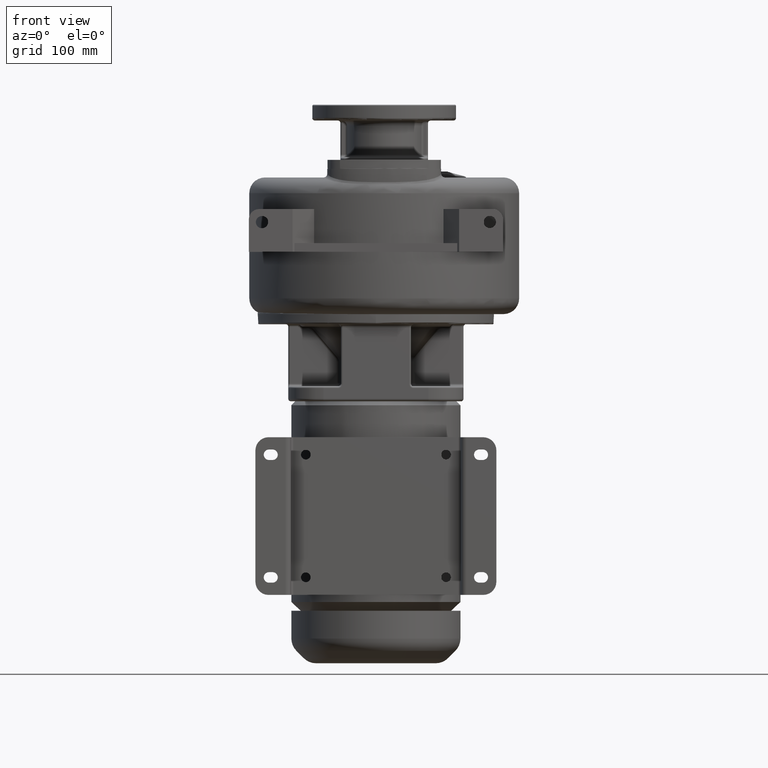
[diagram: clean part render]
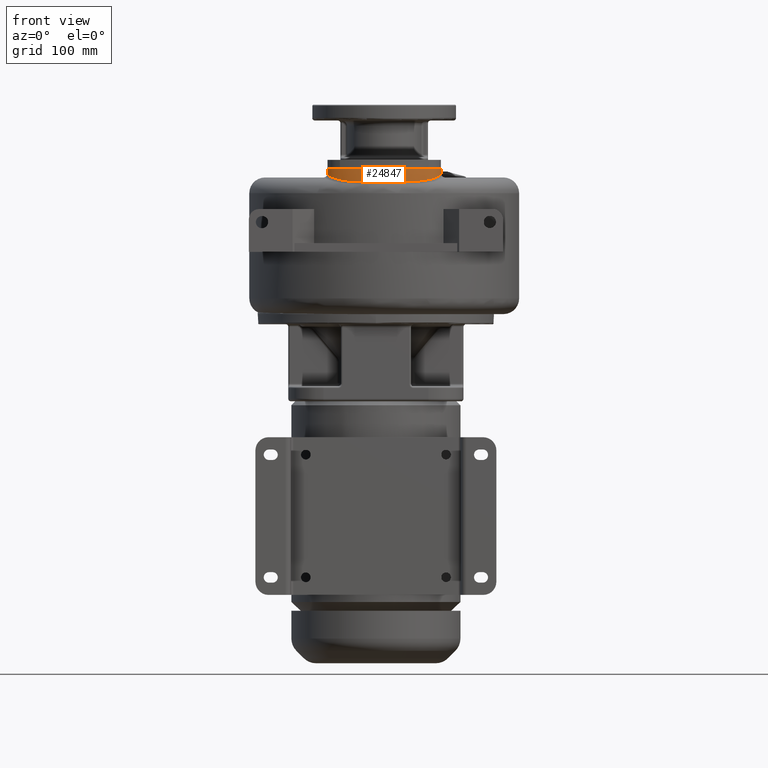
[diagram: same view with one face highlighted and labeled with its STEP entity id]
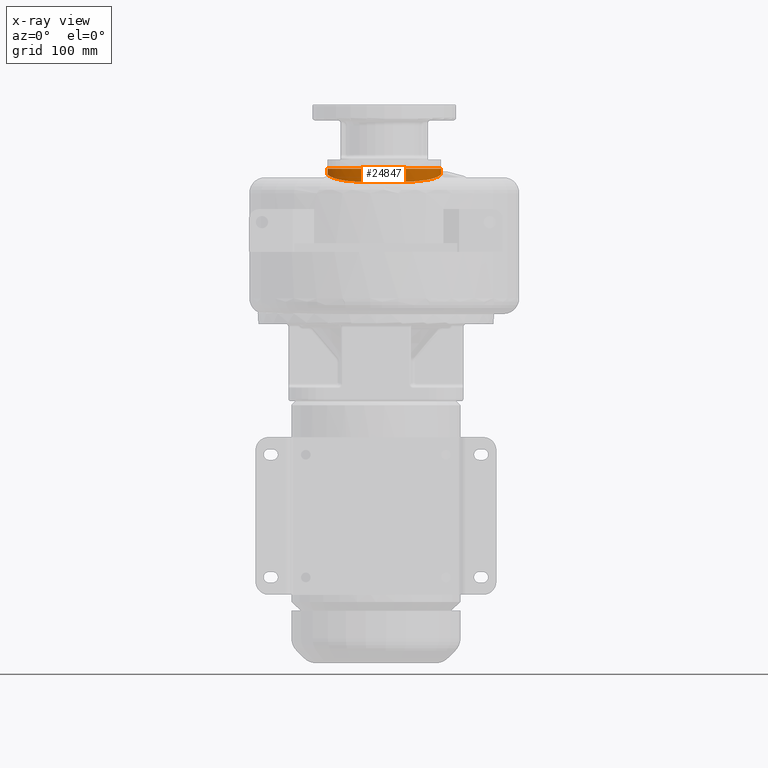
[diagram: x-ray of the same camera — body ghosted, the highlighted face saturated]
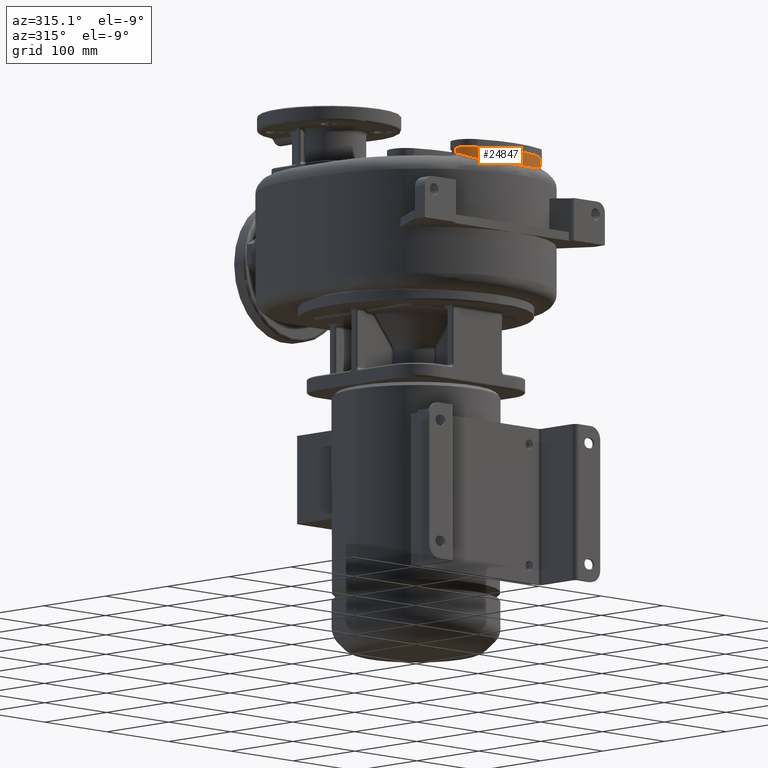
[diagram: same view with one face highlighted and labeled with its STEP entity id]
A machine part, front view. The second image highlights one B-rep face of the part: STEP entity #24847.
The next image is the same camera in x-ray: the body ghosted, the highlighted face saturated — about 0% of this face is hidden behind the body in this view.
A second angle (auxiliary view) of the same face is appended — the face is thin or edge-on in the first view.
In plain terms, the highlighted face is a SurfaceOfExtrusion surface.
Its self-contained STEP definition (entity closure, byte-faithful):
#5518=CARTESIAN_POINT('',(-5.55E1,-1.2E2,2.573661334459E2));
#5598=DIRECTION('',(-4.536448817370E-6,1.281506878098E-9,-9.999999999897E-1));
#5599=VECTOR('',#5598,6.133866553126E0);
#5600=CARTESIAN_POINT('',(7.45E1,-1.2E2,2.635E2));
#5601=LINE('',#5600,#5599);
#5904=CARTESIAN_POINT('',(7.371068580683E1,-1.246610318434E2,2.635E2));
#5905=CARTESIAN_POINT('',(7.383948783821E1,-1.242830562590E2,2.635E2));
#5906=CARTESIAN_POINT('',(7.406671176416E1,-1.235220709316E2,2.635E2));
#5907=CARTESIAN_POINT('',(7.431416673621E1,-1.223651191998E2,2.635E2));
#5908=CARTESIAN_POINT('',(7.446547304286E1,-1.211922350959E2,2.635E2));
#5909=CARTESIAN_POINT('',(7.45E1,-1.203993188020E2,2.635E2));
#5910=CARTESIAN_POINT('',(7.45E1,-1.2E2,2.635E2));
#5912=CARTESIAN_POINT('',(-5.465569962316E1,-1.248196242157E2,2.635E2));
#5913=CARTESIAN_POINT('',(-5.454089837882E1,-1.251451492993E2,2.635E2));
#5914=CARTESIAN_POINT('',(-5.429493213615E1,-1.257751767747E2,2.635E2));
#5915=CARTESIAN_POINT('',(-5.388443063596E1,-1.266668355085E2,2.635E2));
#5916=CARTESIAN_POINT('',(-5.343805082853E1,-1.275124009924E2,2.635E2));
#5917=CARTESIAN_POINT('',(-5.296021634505E1,-1.283175563133E2,2.635E2));
#5918=CARTESIAN_POINT('',(-5.245444811731E1,-1.290868248505E2,2.635E2));
#5919=CARTESIAN_POINT('',(-5.192360518361E1,-1.298238796414E2,2.635E2));
#5920=CARTESIAN_POINT('',(-5.137004653370E1,-1.305317513057E2,2.635E2));
#5921=CARTESIAN_POINT('',(-5.079574492971E1,-1.312129742723E2,2.635E2));
#5922=CARTESIAN_POINT('',(-5.020237307936E1,-1.318696974868E2,2.635E2));
#5923=CARTESIAN_POINT('',(-4.938767823598E1,-1.327150961409E2,2.635E2));
#5924=CARTESIAN_POINT('',(-4.832834501152E1,-1.337192167031E2,2.635E2));
#5925=CARTESIAN_POINT('',(-4.699969074730E1,-1.348503490945E2,2.635E2));
#5926=CARTESIAN_POINT('',(-4.561979138151E1,-1.359156463489E2,2.635E2));
#5927=CARTESIAN_POINT('',(-4.419360741304E1,-1.369214812731E2,2.635E2));
#5928=CARTESIAN_POINT('',(-4.272514651511E1,-1.378730025681E2,2.635E2));
#5929=CARTESIAN_POINT('',(-4.121770022674E1,-1.387744389099E2,2.635E2));
#5930=CARTESIAN_POINT('',(-3.967400189304E1,-1.396293018565E2,2.635E2));
#5931=CARTESIAN_POINT('',(-3.809634387112E1,-1.404405364238E2,2.635E2));
#5932=CARTESIAN_POINT('',(-3.648666230661E1,-1.412106299992E2,2.635E2));
#5933=CARTESIAN_POINT('',(-3.484660575645E1,-1.419417005016E2,2.635E2));
#5934=CARTESIAN_POINT('',(-3.262122534146E1,-1.428668220672E2,2.635E2));
#5935=CARTESIAN_POINT('',(-2.977014165790E1,-1.439341188388E2,2.635E2));
#5936=CARTESIAN_POINT('',(-2.624555381602E1,-1.450821804956E2,2.635E2));
#5937=CARTESIAN_POINT('',(-2.262317749719E1,-1.461046122371E2,2.635E2));
#5938=CARTESIAN_POINT('',(-1.890689690543E1,-1.470064041423E2,2.635E2));
#5939=CARTESIAN_POINT('',(-1.509922069753E1,-1.477907791097E2,2.635E2));
#5940=CARTESIAN_POINT('',(-1.120145779333E1,-1.484594187228E2,2.635E2));
#5941=CARTESIAN_POINT('',(-7.213796790557E0,-1.490125652751E2,2.635E2));
#5942=CARTESIAN_POINT('',(-4.494812417885E0,-1.493035484909E2,2.635E2));
#5943=CARTESIAN_POINT('',(-3.119836299766E0,-1.494291477240E2,2.635E2));
#5945=CARTESIAN_POINT('',(9.51E0,-1.E1,2.635E2));
#5946=DIRECTION('',(0.E0,0.E0,1.E0));
#5947=DIRECTION('',(-3.566129932659E-5,-9.999999993641E-1,0.E0));
#5948=AXIS2_PLACEMENT_3D('',#5945,#5946,#5947);
#5950=CARTESIAN_POINT('',(9.51E0,-1.E1,2.635E2));
#5951=DIRECTION('',(0.E0,0.E0,1.E0));
#5952=DIRECTION('',(2.712425515832E-2,-9.996320697047E-1,0.E0));
#5953=AXIS2_PLACEMENT_3D('',#5950,#5951,#5952);
#5955=CARTESIAN_POINT('',(1.835826022754E1,-1.497201069673E2,2.635E2));
#5956=CARTESIAN_POINT('',(1.983880551911E1,-1.496261052993E2,2.635E2));
#5957=CARTESIAN_POINT('',(2.276491649710E1,-1.493923633048E2,2.635E2));
#5958=CARTESIAN_POINT('',(2.705274042681E1,-1.489092367613E2,2.635E2));
#5959=CARTESIAN_POINT('',(3.124126381564E1,-1.482962667413E2,2.635E2));
#5960=CARTESIAN_POINT('',(3.533113417439E1,-1.475542999175E2,2.635E2));
#5961=CARTESIAN_POINT('',(3.932164502321E1,-1.466824125104E2,2.635E2));
#5962=CARTESIAN_POINT('',(4.321069074385E1,-1.456778512541E2,2.635E2));
#5963=CARTESIAN_POINT('',(4.699460457929E1,-1.445358215677E2,2.635E2));
#5964=CARTESIAN_POINT('',(5.005570059654E1,-1.434636163119E2,2.635E2));
#5965=CARTESIAN_POINT('',(5.244533980548E1,-1.425283941551E2,2.635E2));
#5966=CARTESIAN_POINT('',(5.420666421012E1,-1.417865667514E2,2.635E2));
#5967=CARTESIAN_POINT('',(5.593562111663E1,-1.410024162301E2,2.635E2));
#5968=CARTESIAN_POINT('',(5.763047095746E1,-1.401736679659E2,2.635E2));
#5969=CARTESIAN_POINT('',(5.928915774712E1,-1.392976335919E2,2.635E2));
#5970=CARTESIAN_POINT('',(6.090923239894E1,-1.383711107294E2,2.635E2));
#5971=CARTESIAN_POINT('',(6.248775717940E1,-1.373902580546E2,2.635E2));
#5972=CARTESIAN_POINT('',(6.402117256391E1,-1.363504212017E2,2.635E2));
#5973=CARTESIAN_POINT('',(6.550511631023E1,-1.352458961866E2,2.635E2));
#5974=CARTESIAN_POINT('',(6.693414920859E1,-1.340695708034E2,2.635E2));
#5975=CARTESIAN_POINT('',(6.807353194753E1,-1.330219879958E2,2.635E2));
#5976=CARTESIAN_POINT('',(6.894963379436E1,-1.321376277103E2,2.635E2));
#5977=CARTESIAN_POINT('',(6.958758377661E1,-1.314493481798E2,2.635E2));
#5978=CARTESIAN_POINT('',(7.020479634248E1,-1.307339528027E2,2.635E2));
#5979=CARTESIAN_POINT('',(7.079936039013E1,-1.299889426590E2,2.635E2));
#5980=CARTESIAN_POINT('',(7.136900263131E1,-1.292113452407E2,2.635E2));
#5981=CARTESIAN_POINT('',(7.191097772197E1,-1.283975707888E2,2.635E2));
#5982=CARTESIAN_POINT('',(7.242191974431E1,-1.275432180938E2,2.635E2));
#5983=CARTESIAN_POINT('',(7.289762701406E1,-1.266427931144E2,2.635E2));
#5984=CARTESIAN_POINT('',(7.333273276413E1,-1.256892783691E2,2.635E2));
#5985=CARTESIAN_POINT('',(7.359105631715E1,-1.250120901752E2,2.635E2));
#5986=CARTESIAN_POINT('',(7.371068580683E1,-1.246610318434E2,2.635E2));
#5988=CARTESIAN_POINT('',(-5.55E1,-1.2E2,2.573661334459E2));
#5989=CARTESIAN_POINT('',(-5.549998267714E1,-1.201316774136E2,
2.573498159411E2));
#5990=CARTESIAN_POINT('',(-5.549625003840E1,-1.203973051802E2,
2.573141513361E2));
#5991=CARTESIAN_POINT('',(-5.547876041597E1,-1.208022820241E2,
2.572514841665E2));
#5992=CARTESIAN_POINT('',(-5.544881510330E1,-1.212143159933E2,
2.571796210045E2));
#5993=CARTESIAN_POINT('',(-5.540571887648E1,-1.216336447417E2,
2.570985214059E2));
#5994=CARTESIAN_POINT('',(-5.534875063355E1,-1.220605069789E2,
2.570081760998E2));
#5995=CARTESIAN_POINT('',(-5.527714430897E1,-1.224950598035E2,
2.569086012250E2));
#5996=CARTESIAN_POINT('',(-5.519010562130E1,-1.229373853766E2,
2.567998827820E2));
#5997=CARTESIAN_POINT('',(-5.508681603896E1,-1.233875177508E2,
2.566820064787E2));
#5998=CARTESIAN_POINT('',(-5.496634154555E1,-1.238457812830E2,
2.565549306400E2));
#5999=CARTESIAN_POINT('',(-5.482767178255E1,-1.243124849147E2,
2.564186590384E2));
#6000=CARTESIAN_POINT('',(-5.466975054156E1,-1.247878383032E2,
2.562732700027E2));
#6001=CARTESIAN_POINT('',(-5.449149987375E1,-1.252719117775E2,
2.561189494940E2));
#6002=CARTESIAN_POINT('',(-5.429194346516E1,-1.257644023258E2,
2.559560723378E2));
#6003=CARTESIAN_POINT('',(-5.407011389711E1,-1.262649829082E2,
2.557851739652E2));
#6004=CARTESIAN_POINT('',(-5.382506715521E1,-1.267732723246E2,
2.556066915471E2));
#6005=CARTESIAN_POINT('',(-5.355588097729E1,-1.272888586537E2,
2.554209215064E2));
#6006=CARTESIAN_POINT('',(-5.326166012152E1,-1.278112953681E2,
2.552282938244E2));
#6007=CARTESIAN_POINT('',(-5.294158710587E1,-1.283400348464E2,
2.550293421921E2));
#6008=CARTESIAN_POINT('',(-5.259476311799E1,-1.288747003084E2,
2.548246253100E2));
#6009=CARTESIAN_POINT('',(-5.222015106549E1,-1.294151014661E2,
2.546147076157E2));
#6010=CARTESIAN_POINT('',(-5.181675616625E1,-1.299609405352E2,
2.544003162352E2));
#6011=CARTESIAN_POINT('',(-5.138353597146E1,-1.305119521817E2,
2.541818218650E2));
#6012=CARTESIAN_POINT('',(-5.091942291586E1,-1.310678586979E2,
2.539596246670E2));
#6013=CARTESIAN_POINT('',(-5.042338706674E1,-1.316282996261E2,
2.537342239076E2));
#6014=CARTESIAN_POINT('',(-4.989440047275E1,-1.321928884491E2,
2.535061973386E2));
#6015=CARTESIAN_POINT('',(-4.933130538660E1,-1.327613391334E2,
2.532761416940E2));
#6016=CARTESIAN_POINT('',(-4.873300067287E1,-1.333332616393E2,
2.530448355633E2));
#6017=CARTESIAN_POINT('',(-4.809822587299E1,-1.339083757052E2,
2.528127806988E2));
#6018=CARTESIAN_POINT('',(-4.742549066788E1,-1.344865285408E2,
2.525803363770E2));
#6019=CARTESIAN_POINT('',(-4.671333059074E1,-1.350674497063E2,
2.523479931398E2));
#6020=CARTESIAN_POINT('',(-4.596034029647E1,-1.356507443016E2,
2.521163407709E2));
#6021=CARTESIAN_POINT('',(-4.516523959303E1,-1.362358621968E2,
2.518860849946E2));
#6022=CARTESIAN_POINT('',(-4.432684055125E1,-1.368221538915E2,
2.516580749547E2));
#6023=CARTESIAN_POINT('',(-4.344343363293E1,-1.374092818214E2,
2.514328218661E2));
#6024=CARTESIAN_POINT('',(-4.251296333186E1,-1.379970189E2,2.512107659664E2));
#6025=CARTESIAN_POINT('',(-4.153340292640E1,-1.385849850086E2,
2.509924584252E2));
#6026=CARTESIAN_POINT('',(-4.050297873143E1,-1.391725393258E2,
2.507785728473E2));
#6027=CARTESIAN_POINT('',(-3.942010410736E1,-1.397588594182E2,
2.505698958253E2));
#6028=CARTESIAN_POINT('',(-3.828300376651E1,-1.403431633713E2,
2.503671704277E2));
#6029=CARTESIAN_POINT('',(-3.708886284445E1,-1.409250776046E2,
2.501708281528E2));
#6030=CARTESIAN_POINT('',(-3.583486277437E1,-1.415040354188E2,
2.499813891529E2));
#6031=CARTESIAN_POINT('',(-3.451847764657E1,-1.420791665138E2,
2.497994507683E2));
#6032=CARTESIAN_POINT('',(-3.313765149156E1,-1.426492678551E2,
2.496256826791E2));
#6033=CARTESIAN_POINT('',(-3.169016927109E1,-1.432131045410E2,
2.494607115884E2));
#6034=CARTESIAN_POINT('',(-3.017269330029E1,-1.437697225286E2,
2.493049628840E2));
#6035=CARTESIAN_POINT('',(-2.858169848254E1,-1.443179989021E2,
2.491588257806E2));
#6036=CARTESIAN_POINT('',(-2.691472380387E1,-1.448562387275E2,
2.490227300149E2));
#6037=CARTESIAN_POINT('',(-2.517018421983E1,-1.453823529987E2,
2.488970083026E2));
#6038=CARTESIAN_POINT('',(-2.334627756159E1,-1.458942303020E2,
2.487819068903E2));
#6039=CARTESIAN_POINT('',(-2.144126462187E1,-1.463896326856E2,
2.486776621807E2));
#6040=CARTESIAN_POINT('',(-1.945343817626E1,-1.468661763674E2,
2.485842779551E2));
#6041=CARTESIAN_POINT('',(-1.738418808105E1,-1.473206989759E2,
2.485016443328E2));
#6042=CARTESIAN_POINT('',(-1.523474825543E1,-1.477501648546E2,
2.484292423074E2));
#6043=CARTESIAN_POINT('',(-1.300856613564E1,-1.481512158774E2,
2.483669236707E2));
#6044=CARTESIAN_POINT('',(-1.070899247478E1,-1.485207141165E2,
2.483142660212E2));
#6045=CARTESIAN_POINT('',(-8.341575701324E0,-1.488553943317E2,
2.482705989411E2));
#6046=CARTESIAN_POINT('',(-5.912581189284E0,-1.491522272245E2,
2.482347870914E2));
#6047=CARTESIAN_POINT('',(-3.429593202542E0,-1.494083914687E2,
2.482060917414E2));
#6048=CARTESIAN_POINT('',(-9.011759501781E-1,-1.496214092809E2,
2.481840780374E2));
#6049=CARTESIAN_POINT('',(1.664083551655E0,-1.497892617729E2,2.481680312932E2));
#6050=CARTESIAN_POINT('',(4.257190458190E0,-1.499103541925E2,2.481570628317E2));
#6051=CARTESIAN_POINT('',(6.869096476019E0,-1.499835449343E2,2.481503480890E2));
#6052=CARTESIAN_POINT('',(9.490404618212E0,-1.500081378620E2,2.481480827367E2));
#6053=CARTESIAN_POINT('',(1.211177012034E1,-1.499839016603E2,2.481502814733E2));
#6054=CARTESIAN_POINT('',(1.472377499172E1,-1.499110637635E2,2.481569751242E2));
#6055=CARTESIAN_POINT('',(1.731695211306E1,-1.497903229674E2,2.481679721646E2));
#6056=CARTESIAN_POINT('',(1.988228327651E1,-1.496228207119E2,2.481839383228E2));
#6057=CARTESIAN_POINT('',(2.241075130780E1,-1.494101542075E2,2.482058619924E2));
#6058=CARTESIAN_POINT('',(2.489385591850E1,-1.491543348248E2,2.482344815303E2));
#6059=CARTESIAN_POINT('',(2.732316525068E1,-1.488578194693E2,2.482703280520E2));
#6060=CARTESIAN_POINT('',(2.969114136031E1,-1.485234096507E2,2.483139361830E2));
#6061=CARTESIAN_POINT('',(3.199125501371E1,-1.481541643811E2,2.483664810785E2));
#6062=CARTESIAN_POINT('',(3.421781408455E1,-1.477533796166E2,2.484286794417E2));
#6063=CARTESIAN_POINT('',(3.636769650111E1,-1.473241563766E2,2.485010254376E2));
#6064=CARTESIAN_POINT('',(3.843758957306E1,-1.468698164555E2,2.485836249807E2));
#6065=CARTESIAN_POINT('',(4.042615482079E1,-1.463934081830E2,2.486769099030E2));
#6066=CARTESIAN_POINT('',(4.233179858075E1,-1.458981434364E2,2.487810460263E2));
#6067=CARTESIAN_POINT('',(4.415623719409E1,-1.453864115947E2,2.488960426748E2));
#6068=CARTESIAN_POINT('',(4.590132999801E1,-1.448604197103E2,2.490217048853E2));
#6069=CARTESIAN_POINT('',(4.756896110991E1,-1.443222497478E2,2.491577333395E2));
#6070=CARTESIAN_POINT('',(4.916064585722E1,-1.437740076317E2,2.493038016279E2));
#6071=CARTESIAN_POINT('',(5.067874426810E1,-1.432174243955E2,2.494594765894E2));
#6072=CARTESIAN_POINT('',(5.212678329788E1,-1.426536270998E2,2.496243715367E2));
#6073=CARTESIAN_POINT('',(5.350813143392E1,-1.420835616911E2,2.497980733030E2));
#6074=CARTESIAN_POINT('',(5.482510052494E1,-1.415084213696E2,2.499799769537E2));
#6075=CARTESIAN_POINT('',(5.607969384952E1,-1.409294281435E2,2.501693923917E2));
#6076=CARTESIAN_POINT('',(5.727439804864E1,-1.403474710109E2,2.503657099085E2));
#6077=CARTESIAN_POINT('',(5.841201578746E1,-1.397631266086E2,2.505683999071E2));
#6078=CARTESIAN_POINT('',(5.949535340517E1,-1.391767771799E2,2.507770217247E2));
#6079=CARTESIAN_POINT('',(6.052627703245E1,-1.385891552732E2,2.509909103022E2));
#6080=CARTESIAN_POINT('',(6.150633934292E1,-1.380010990686E2,2.512092426775E2));
#6081=CARTESIAN_POINT('',(6.243729169986E1,-1.374132628216E2,2.514313266298E2));
#6082=CARTESIAN_POINT('',(6.332114788816E1,-1.368260359642E2,2.516565984659E2));
#6083=CARTESIAN_POINT('',(6.415994243363E1,-1.362396630862E2,2.518845829543E2));
#6084=CARTESIAN_POINT('',(6.495542109952E1,-1.356544595276E2,2.521148355067E2));
#6085=CARTESIAN_POINT('',(6.570879629024E1,-1.350710554716E2,2.523465419918E2));
#6086=CARTESIAN_POINT('',(6.642133028026E1,-1.344900133941E2,2.525789540831E2));
#6087=CARTESIAN_POINT('',(6.709442145770E1,-1.339117342306E2,2.528114619717E2));
#6088=CARTESIAN_POINT('',(6.772952942078E1,-1.333364934291E2,2.530435628156E2));
#6089=CARTESIAN_POINT('',(6.832813557968E1,-1.327644542011E2,2.532748512802E2));
#6090=CARTESIAN_POINT('',(6.889151561202E1,-1.321958843083E2,2.535049322498E2));
#6091=CARTESIAN_POINT('',(6.942077317666E1,-1.316311713224E2,2.537330402339E2));
#6092=CARTESIAN_POINT('',(6.991705555183E1,-1.310706138652E2,2.539585340059E2));
#6093=CARTESIAN_POINT('',(7.038139579887E1,-1.305145948591E2,2.541808156044E2));
#6094=CARTESIAN_POINT('',(7.081482501170E1,-1.299634750483E2,2.543993690114E2));
#6095=CARTESIAN_POINT('',(7.121841434421E1,-1.294175288144E2,2.546137602411E2));
#6096=CARTESIAN_POINT('',(7.159319659626E1,-1.288770368298E2,2.548236618766E2));
#6097=CARTESIAN_POINT('',(7.194015667445E1,-1.283423165781E2,2.550284307876E2));
#6098=CARTESIAN_POINT('',(7.226031337435E1,-1.278135988389E2,2.552274278606E2));
#6099=CARTESIAN_POINT('',(7.255458534762E1,-1.272912438264E2,2.554200862669E2));
#6100=CARTESIAN_POINT('',(7.282382901032E1,-1.267757363925E2,2.556058704251E2));
#6101=CARTESIAN_POINT('',(7.306896662919E1,-1.262674635952E2,2.557843598902E2));
#6102=CARTESIAN_POINT('',(7.329093452424E1,-1.257667846865E2,2.559552297105E2));
#6103=CARTESIAN_POINT('',(7.349064328034E1,-1.252741320684E2,2.561181537850E2));
#6104=CARTESIAN_POINT('',(7.366903701145E1,-1.247898807284E2,2.562725700556E2));
#6105=CARTESIAN_POINT('',(7.382707240092E1,-1.243143931772E2,2.564180630111E2));
#6106=CARTESIAN_POINT('',(7.396583067480E1,-1.238476074657E2,2.565544305983E2));
#6107=CARTESIAN_POINT('',(7.408637381214E1,-1.233893137542E2,2.566815805817E2));
#6108=CARTESIAN_POINT('',(7.418971712649E1,-1.229392044268E2,2.567995011905E2));
#6109=CARTESIAN_POINT('',(7.427680048431E1,-1.224969566087E2,2.569082099281E2));
#6110=CARTESIAN_POINT('',(7.434846265899E1,-1.220624371496E2,2.570077637375E2));
#6111=CARTESIAN_POINT('',(7.440549752464E1,-1.216355258113E2,2.570981256091E2));
#6112=CARTESIAN_POINT('',(7.444866749566E1,-1.212160261550E2,2.571792718577E2));
#6113=CARTESIAN_POINT('',(7.447868443998E1,-1.208036574816E2,2.572512199516E2));
#6114=CARTESIAN_POINT('',(7.449623393551E1,-1.203981420669E2,2.573139898227E2));
#6115=CARTESIAN_POINT('',(7.449997939691E1,-1.201319844815E2,2.573497693986E2));
#6116=CARTESIAN_POINT('',(7.45E1,-1.2E2,2.573661334459E2));
#6118=DIRECTION('',(2.703349258996E-6,1.281307634511E-9,-9.999999999963E-1));
#6119=VECTOR('',#6118,6.133866553182E0);
#6120=CARTESIAN_POINT('',(-5.55E1,-1.2E2,2.635E2));
#6121=LINE('',#6120,#6119);
#6137=CARTESIAN_POINT('',(-3.119836300065E0,-1.494291477240E2,2.635E2));
#6138=CARTESIAN_POINT('',(-2.069967968289E0,-1.495250495041E2,2.635E2));
#6139=CARTESIAN_POINT('',(3.089642294732E-2,-1.496921007778E2,2.635E2));
#6140=CARTESIAN_POINT('',(3.185501758780E0,-1.498700545690E2,2.635E2));
#6141=CARTESIAN_POINT('',(6.343367284091E0,-1.499764510642E2,2.635E2));
#6142=CARTESIAN_POINT('',(8.450768016466E0,-1.500000373949E2,2.635E2));
#6143=CARTESIAN_POINT('',(9.505007393498E0,-1.499999999110E2,2.635E2));
#6198=CARTESIAN_POINT('',(-5.55E1,-1.2E2,2.635E2));
#6199=CARTESIAN_POINT('',(-5.55E1,-1.204136783282E2,2.635E2));
#6200=CARTESIAN_POINT('',(-5.546294751324E1,-1.212346928498E2,2.635E2));
#6201=CARTESIAN_POINT('',(-5.530086758535E1,-1.224479852222E2,2.635E2));
#6202=CARTESIAN_POINT('',(-5.503612533366E1,-1.236437052704E2,2.635E2));
#6203=CARTESIAN_POINT('',(-5.479328421618E1,-1.244294957253E2,2.635E2));
#6204=CARTESIAN_POINT('',(-5.465569962316E1,-1.248196242157E2,2.635E2));
#18536=VERTEX_POINT('',#5518);
#18538=VERTEX_POINT('',#6116);
#18541=CARTESIAN_POINT('',(7.45E1,-1.2E2,2.635E2));
#18542=VERTEX_POINT('',#18541);
#18543=CARTESIAN_POINT('',(-5.55E1,-1.2E2,2.635E2));
#18544=VERTEX_POINT('',#18543);
#19159=CARTESIAN_POINT('',(-5.465569962316E1,-1.248196242157E2,2.635E2));
#19161=VERTEX_POINT('',#19159);
#19162=CARTESIAN_POINT('',(-3.119836300066E0,-1.494291477240E2,2.635E2));
#19163=CARTESIAN_POINT('',(9.505007393498E0,-1.499999999110E2,2.635E2));
#19164=VERTEX_POINT('',#19162);
#19165=VERTEX_POINT('',#19163);
#19166=CARTESIAN_POINT('',(7.371068580683E1,-1.246610318434E2,2.635E2));
#19168=VERTEX_POINT('',#19166);
#19188=CARTESIAN_POINT('',(1.330739572217E1,-1.499484897587E2,2.635E2));
#19189=VERTEX_POINT('',#19188);
#19190=VERTEX_POINT('',#5955);
#24822=CARTESIAN_POINT('',(9.5E0,-1.2E2,2.635E2));
#24823=DIRECTION('',(0.E0,0.E0,1.E0));
#24824=DIRECTION('',(1.E0,0.E0,0.E0));
#24825=AXIS2_PLACEMENT_3D('',#24822,#24823,#24824);
#24827=DIRECTION('',(0.E0,0.E0,1.E0));
#24828=VECTOR('',#24827,1.E0);
#24829=SURFACE_OF_LINEAR_EXTRUSION('',#24826,#24828);
#24831=ORIENTED_EDGE('',*,*,#24830,.T.);
#24833=ORIENTED_EDGE('',*,*,#24832,.T.);
#24834=ORIENTED_EDGE('',*,*,#24494,.T.);
#24835=ORIENTED_EDGE('',*,*,#24492,.T.);
#24837=ORIENTED_EDGE('',*,*,#24836,.T.);
#24838=ORIENTED_EDGE('',*,*,#24817,.T.);
#24839=ORIENTED_EDGE('',*,*,#24411,.T.);
#24841=ORIENTED_EDGE('',*,*,#24840,.F.);
#24842=ORIENTED_EDGE('',*,*,#24406,.F.);
#24844=ORIENTED_EDGE('',*,*,#24843,.T.);
#24845=EDGE_LOOP('',(#24831,#24833,#24834,#24835,#24837,#24838,#24839,#24841,
#24842,#24844));
#24846=FACE_OUTER_BOUND('',#24845,.F.);
#24847=ADVANCED_FACE('',(#24846),#24829,.T.);
#5911=B_SPLINE_CURVE_WITH_KNOTS('',3,(#5904,#5905,#5906,#5907,#5908,#5909,
#5910),.UNSPECIFIED.,.F.,.F.,(4,1,1,1,4),(0.E0,2.5E-1,5.E-1,7.5E-1,1.E0),
.UNSPECIFIED.);
#5944=B_SPLINE_CURVE_WITH_KNOTS('',3,(#5912,#5913,#5914,#5915,#5916,#5917,#5918,
#5919,#5920,#5921,#5922,#5923,#5924,#5925,#5926,#5927,#5928,#5929,#5930,#5931,
#5932,#5933,#5934,#5935,#5936,#5937,#5938,#5939,#5940,#5941,#5942,#5943),
.UNSPECIFIED.,.F.,.F.,(4,1,1,1,1,1,1,1,1,1,1,1,1,1,1,1,1,1,1,1,1,1,1,1,1,1,1,1,
1,4),(0.E0,1.5625E-2,3.125E-2,4.6875E-2,6.25E-2,7.8125E-2,9.375E-2,1.09375E-1,
1.25E-1,1.40625E-1,1.5625E-1,1.875E-1,2.1875E-1,2.5E-1,2.8125E-1,3.125E-1,
3.4375E-1,3.75E-1,4.0625E-1,4.375E-1,4.6875E-1,5.E-1,5.625E-1,6.25E-1,6.875E-1,
7.5E-1,8.125E-1,8.75E-1,9.375E-1,1.E0),.UNSPECIFIED.);
#5949=CIRCLE('',#5948,1.4E2);
#5954=CIRCLE('',#5953,1.4E2);
#5987=B_SPLINE_CURVE_WITH_KNOTS('',3,(#5955,#5956,#5957,#5958,#5959,#5960,#5961,
#5962,#5963,#5964,#5965,#5966,#5967,#5968,#5969,#5970,#5971,#5972,#5973,#5974,
#5975,#5976,#5977,#5978,#5979,#5980,#5981,#5982,#5983,#5984,#5985,#5986),
.UNSPECIFIED.,.F.,.F.,(4,1,1,1,1,1,1,1,1,1,1,1,1,1,1,1,1,1,1,1,1,1,1,1,1,1,1,1,
1,4),(0.E0,6.25E-2,1.25E-1,1.875E-1,2.5E-1,3.125E-1,3.75E-1,4.375E-1,5.E-1,
5.3125E-1,5.625E-1,5.9375E-1,6.25E-1,6.5625E-1,6.875E-1,7.1875E-1,7.5E-1,
7.8125E-1,8.125E-1,8.4375E-1,8.59375E-1,8.75E-1,8.90625E-1,9.0625E-1,9.21875E-1,
9.375E-1,9.53125E-1,9.6875E-1,9.84375E-1,1.E0),.UNSPECIFIED.);
#6117=B_SPLINE_CURVE_WITH_KNOTS('',3,(#5988,#5989,#5990,#5991,#5992,#5993,#5994,
#5995,#5996,#5997,#5998,#5999,#6000,#6001,#6002,#6003,#6004,#6005,#6006,#6007,
#6008,#6009,#6010,#6011,#6012,#6013,#6014,#6015,#6016,#6017,#6018,#6019,#6020,
#6021,#6022,#6023,#6024,#6025,#6026,#6027,#6028,#6029,#6030,#6031,#6032,#6033,
#6034,#6035,#6036,#6037,#6038,#6039,#6040,#6041,#6042,#6043,#6044,#6045,#6046,
#6047,#6048,#6049,#6050,#6051,#6052,#6053,#6054,#6055,#6056,#6057,#6058,#6059,
#6060,#6061,#6062,#6063,#6064,#6065,#6066,#6067,#6068,#6069,#6070,#6071,#6072,
#6073,#6074,#6075,#6076,#6077,#6078,#6079,#6080,#6081,#6082,#6083,#6084,#6085,
#6086,#6087,#6088,#6089,#6090,#6091,#6092,#6093,#6094,#6095,#6096,#6097,#6098,
#6099,#6100,#6101,#6102,#6103,#6104,#6105,#6106,#6107,#6108,#6109,#6110,#6111,
#6112,#6113,#6114,#6115,#6116),.UNSPECIFIED.,.F.,.F.,(4,1,1,1,1,1,1,1,1,1,1,1,1,
1,1,1,1,1,1,1,1,1,1,1,1,1,1,1,1,1,1,1,1,1,1,1,1,1,1,1,1,1,1,1,1,1,1,1,1,1,1,1,1,
1,1,1,1,1,1,1,1,1,1,1,1,1,1,1,1,1,1,1,1,1,1,1,1,1,1,1,1,1,1,1,1,1,1,1,1,1,1,1,1,
1,1,1,1,1,1,1,1,1,1,1,1,1,1,1,1,1,1,1,1,1,1,1,1,1,1,1,1,1,1,1,1,1,4),(0.E0,
7.936507936508E-3,1.587301587302E-2,2.380952380952E-2,3.174603174603E-2,
3.968253968254E-2,4.761904761905E-2,5.555555555556E-2,6.349206349206E-2,
7.142857142857E-2,7.936507936508E-2,8.730158730159E-2,9.523809523810E-2,
1.031746031746E-1,1.111111111111E-1,1.190476190476E-1,1.269841269841E-1,
1.349206349206E-1,1.428571428571E-1,1.507936507937E-1,1.587301587302E-1,
1.666666666667E-1,1.746031746032E-1,1.825396825397E-1,1.904761904762E-1,
1.984126984127E-1,2.063492063492E-1,2.142857142857E-1,2.222222222222E-1,
2.301587301587E-1,2.380952380952E-1,2.460317460317E-1,2.539682539683E-1,
2.619047619048E-1,2.698412698413E-1,2.777777777778E-1,2.857142857143E-1,
2.936507936508E-1,3.015873015873E-1,3.095238095238E-1,3.174603174603E-1,
3.253968253968E-1,3.333333333333E-1,3.412698412698E-1,3.492063492063E-1,
3.571428571429E-1,3.650793650794E-1,3.730158730159E-1,3.809523809524E-1,
3.888888888889E-1,3.968253968254E-1,4.047619047619E-1,4.126984126984E-1,
4.206349206349E-1,4.285714285714E-1,4.365079365079E-1,4.444444444444E-1,
4.523809523810E-1,4.603174603175E-1,4.682539682540E-1,4.761904761905E-1,
4.841269841270E-1,4.920634920635E-1,5.E-1,5.079365079365E-1,5.158730158730E-1,
5.238095238095E-1,5.317460317460E-1,5.396825396825E-1,5.476190476190E-1,
5.555555555556E-1,5.634920634921E-1,5.714285714286E-1,5.793650793651E-1,
5.873015873016E-1,5.952380952381E-1,6.031746031746E-1,6.111111111111E-1,
6.190476190476E-1,6.269841269841E-1,6.349206349206E-1,6.428571428571E-1,
6.507936507937E-1,6.587301587302E-1,6.666666666667E-1,6.746031746032E-1,
6.825396825397E-1,6.904761904762E-1,6.984126984127E-1,7.063492063492E-1,
7.142857142857E-1,7.222222222222E-1,7.301587301587E-1,7.380952380952E-1,
7.460317460317E-1,7.539682539683E-1,7.619047619048E-1,7.698412698413E-1,
7.777777777778E-1,7.857142857143E-1,7.936507936508E-1,8.015873015873E-1,
8.095238095238E-1,8.174603174603E-1,8.253968253968E-1,8.333333333333E-1,
8.412698412698E-1,8.492063492063E-1,8.571428571429E-1,8.650793650794E-1,
8.730158730159E-1,8.809523809524E-1,8.888888888889E-1,8.968253968254E-1,
9.047619047619E-1,9.126984126984E-1,9.206349206349E-1,9.285714285714E-1,
9.365079365079E-1,9.444444444444E-1,9.523809523810E-1,9.603174603175E-1,
9.682539682540E-1,9.761904761905E-1,9.841269841270E-1,9.920634920635E-1,1.E0),
.UNSPECIFIED.);
#6144=B_SPLINE_CURVE_WITH_KNOTS('',3,(#6137,#6138,#6139,#6140,#6141,#6142,
#6143),.UNSPECIFIED.,.F.,.F.,(4,1,1,1,4),(0.E0,2.5E-1,5.E-1,7.5E-1,1.E0),
.UNSPECIFIED.);
#6205=B_SPLINE_CURVE_WITH_KNOTS('',3,(#6198,#6199,#6200,#6201,#6202,#6203,
#6204),.UNSPECIFIED.,.F.,.F.,(4,1,1,1,4),(0.E0,2.5E-1,5.E-1,7.5E-1,1.E0),
.UNSPECIFIED.);
#24406=EDGE_CURVE('',#18544,#18536,#6121,.T.);
#24411=EDGE_CURVE('',#18542,#18538,#5601,.T.);
#24492=EDGE_CURVE('',#19189,#19190,#5954,.T.);
#24494=EDGE_CURVE('',#19165,#19189,#5949,.T.);
#24817=EDGE_CURVE('',#19168,#18542,#5911,.T.);
#24826=ELLIPSE('',#24825,6.5E1,3.E1);
#24830=EDGE_CURVE('',#19161,#19164,#5944,.T.);
#24832=EDGE_CURVE('',#19164,#19165,#6144,.T.);
#24836=EDGE_CURVE('',#19190,#19168,#5987,.T.);
#24840=EDGE_CURVE('',#18536,#18538,#6117,.T.);
#24843=EDGE_CURVE('',#18544,#19161,#6205,.T.);